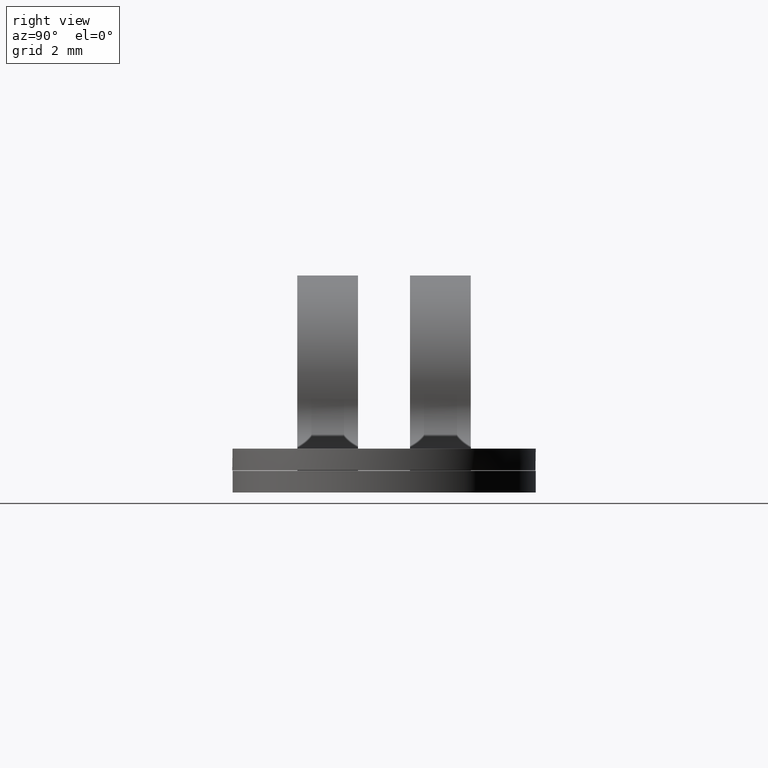
[diagram: clean part render]
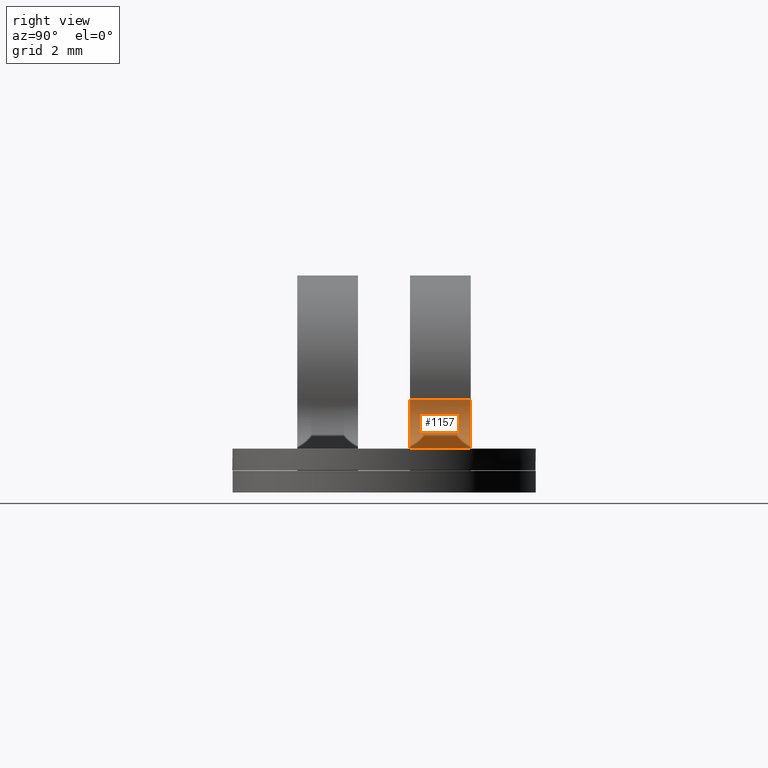
[diagram: same view with one face highlighted and labeled with its STEP entity id]
A machine part, right view. The second image highlights one B-rep face of the part: STEP entity #1157.
In plain terms, the highlighted face is a freeform B-spline surface patch.
Its self-contained STEP definition (entity closure, byte-faithful):
#292=CARTESIAN_POINT('',(3.865530262456245,0.600000000000156,-1.490000000000000));
#293=VERTEX_POINT('',#292);
#299=CARTESIAN_POINT('',(2.875378758897320,0.600000000000156,-0.350000000000000));
#300=VERTEX_POINT('',#299);
#301=CARTESIAN_POINT('',(2.875378758897320,0.600000000000156,-0.350000000000000));
#302=CARTESIAN_POINT('',(2.811541781976854,0.600000000000156,-0.801487704860400));
#303=CARTESIAN_POINT('',(3.110546818929170,0.600000000000156,-1.145743852430200));
#304=CARTESIAN_POINT('',(3.409551855881486,0.600000000000156,-1.490000000000001));
#305=CARTESIAN_POINT('',(3.865530262456245,0.600000000000156,-1.490000000000000));
#313=(BOUNDED_CURVE()B_SPLINE_CURVE(2,(#301,#302,#303,#304,#305),.UNSPECIFIED.,.F.,.U.)B_SPLINE_CURVE_WITH_KNOTS((3,2,3),(0.0,0.500000000000000,1.0),.UNSPECIFIED.)CURVE()GEOMETRIC_REPRESENTATION_ITEM()RATIONAL_B_SPLINE_CURVE((1.0,0.909874676103857,1.0,0.909874676103857,1.0))REPRESENTATION_ITEM(''));
#314=EDGE_CURVE('',#300,#293,#313,.T.);
#847=CARTESIAN_POINT('',(2.875378758897320,2.000000000000225,-0.350000000000000));
#848=VERTEX_POINT('',#847);
#868=CARTESIAN_POINT('',(3.865530262456245,2.000000000000225,-1.490000000000000));
#869=VERTEX_POINT('',#868);
#870=CARTESIAN_POINT('',(3.865530262456245,2.000000000000225,-1.490000000000000));
#871=CARTESIAN_POINT('',(3.409551855881486,2.000000000000225,-1.490000000000000));
#872=CARTESIAN_POINT('',(3.110546818929170,2.000000000000225,-1.145743852430200));
#873=CARTESIAN_POINT('',(2.811541781976854,2.000000000000225,-0.801487704860400));
#874=CARTESIAN_POINT('',(2.875378758897320,2.000000000000225,-0.350000000000000));
#882=(BOUNDED_CURVE()B_SPLINE_CURVE(2,(#870,#871,#872,#873,#874),.UNSPECIFIED.,.F.,.U.)B_SPLINE_CURVE_WITH_KNOTS((3,2,3),(0.0,0.500000000000000,1.0),.UNSPECIFIED.)CURVE()GEOMETRIC_REPRESENTATION_ITEM()RATIONAL_B_SPLINE_CURVE((1.0,0.909874676103858,1.0,0.909874676103858,1.0))REPRESENTATION_ITEM(''));
#883=EDGE_CURVE('',#869,#848,#882,.T.);
#984=CARTESIAN_POINT('',(3.865530262456245,2.000000000000225,-1.490000000000000));
#985=CARTESIAN_POINT('',(3.865530262456245,0.600000000000156,-1.490000000000000));
#986=QUASI_UNIFORM_CURVE('',1,(#984,#985),.UNSPECIFIED.,.F.,.U.);
#987=EDGE_CURVE('',#869,#293,#986,.T.);
#1133=CARTESIAN_POINT('',(3.908315354965192,2.035000000000227,-1.489084298675042));
#1134=CARTESIAN_POINT('',(3.908315354965192,0.564125000000154,-1.489084298675042));
#1135=CARTESIAN_POINT('',(2.611393413171776,2.035000000000228,-1.544624081784539));
#1136=CARTESIAN_POINT('',(2.611393413171776,0.564125000000154,-1.544624081784539));
#1137=CARTESIAN_POINT('',(2.888596747972752,2.035000000000227,-0.276456308267063));
#1138=CARTESIAN_POINT('',(2.888596747972752,0.564125000000154,-0.276456308267063));
#1146=(BOUNDED_SURFACE()B_SPLINE_SURFACE(1,2,((#1133,#1135,#1137),(#1134,#1136,#1138)),.UNSPECIFIED.,.F.,.F.,.U.)B_SPLINE_SURFACE_WITH_KNOTS((2,2),(3,3),(0.0,1.0),(0.0,0.997607128758263),.UNSPECIFIED.)GEOMETRIC_REPRESENTATION_ITEM()RATIONAL_B_SPLINE_SURFACE(((1.0,0.609697612533904,0.998132113282902),(1.0,0.609697612533904,0.998132113282902)))REPRESENTATION_ITEM('')SURFACE());
#1147=CARTESIAN_POINT('',(2.875378758897320,2.000000000000225,-0.350000000000000));
#1148=CARTESIAN_POINT('',(2.875378758897320,0.600000000000156,-0.350000000000000));
#1149=QUASI_UNIFORM_CURVE('',1,(#1147,#1148),.UNSPECIFIED.,.F.,.U.);
#1150=EDGE_CURVE('',#848,#300,#1149,.T.);
#1151=ORIENTED_EDGE('',*,*,#1150,.T.);
#1152=ORIENTED_EDGE('',*,*,#314,.T.);
#1153=ORIENTED_EDGE('',*,*,#987,.F.);
#1154=ORIENTED_EDGE('',*,*,#883,.T.);
#1155=EDGE_LOOP('',(#1151,#1152,#1153,#1154));
#1156=FACE_OUTER_BOUND('',#1155,.T.);
#1157=ADVANCED_FACE('',(#1156),#1146,.F.);